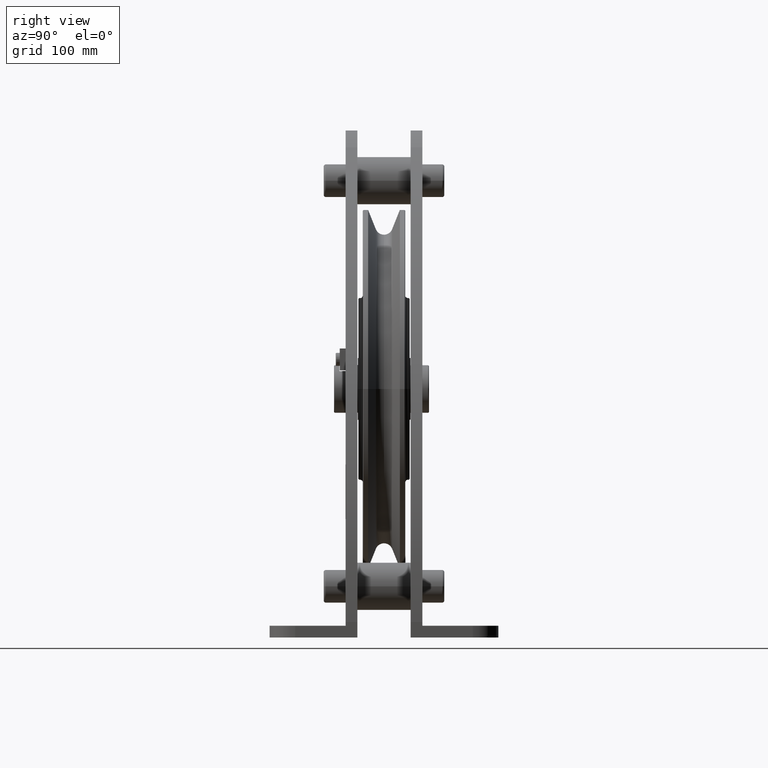
[diagram: clean part render]
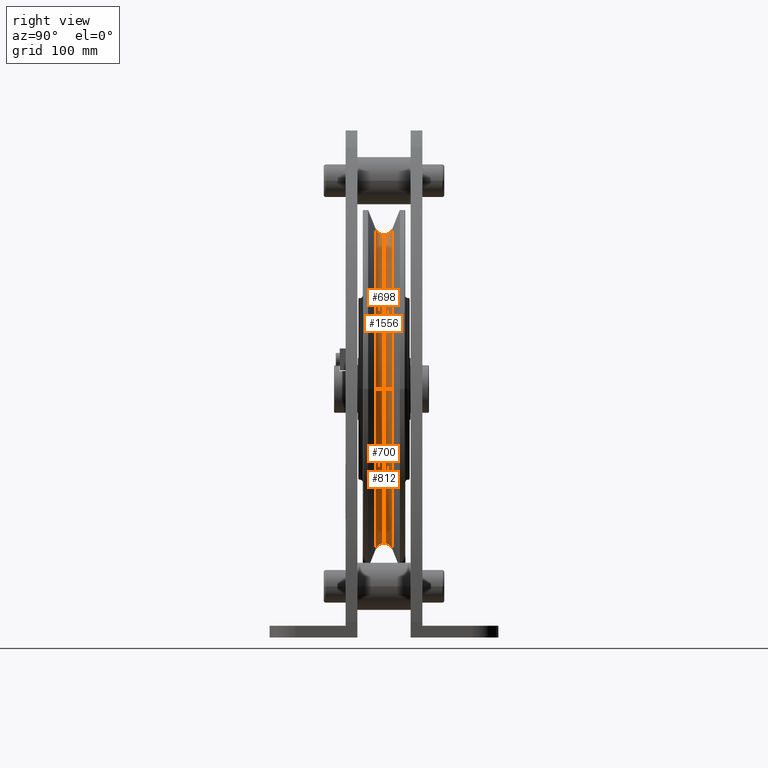
[diagram: same view with one multi-face feature highlighted, each face labeled with its STEP entity id]
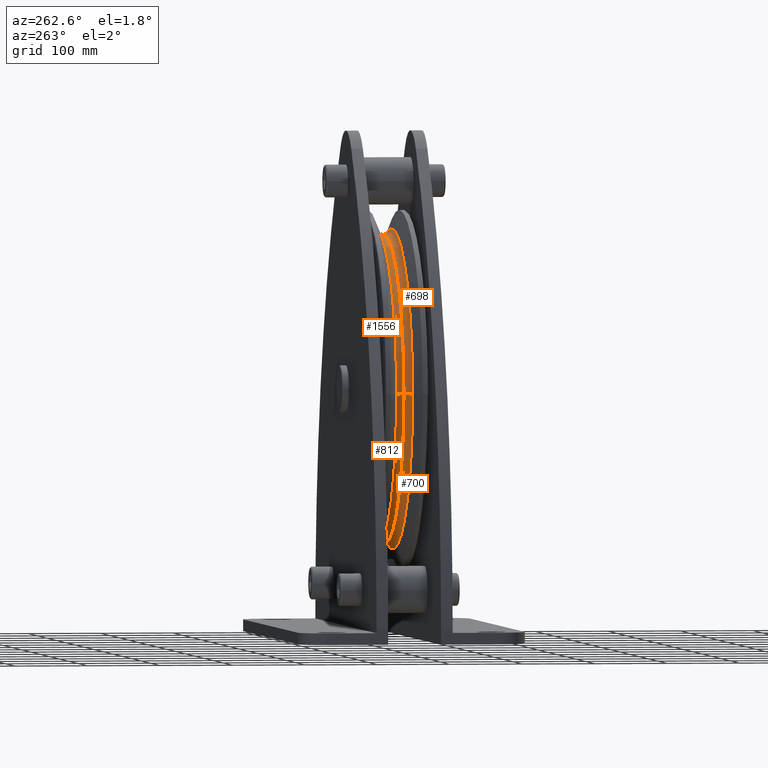
[diagram: same view with one multi-face feature highlighted, each face labeled with its STEP entity id]
A machine part, right view. The highlighted faces form ONE feature: a constant-radius fillet chain: 4 tangent blend faces with common blend radius 12 mm. The faces share edges in the B-rep.
A second angle (auxiliary view) of the same feature is appended — it is thin or edge-on in the first view.
Their STEP definitions:
[1] entity #700 (Torus):
#700=ADVANCED_FACE('',(#2017),#2018,.F.);
#2017=FACE_OUTER_BOUND('',#4049,.T.);
#2018=TOROIDAL_SURFACE('',#4050,223.9999992993,11.9999992993);
#4049=EDGE_LOOP('',(#6160,#6161,#6162,#6163));
#4050=AXIS2_PLACEMENT_3D('',#6164,#6165,#6166);
#6160=ORIENTED_EDGE('',*,*,#12158,.F.);
#6161=ORIENTED_EDGE('',*,*,#12156,.F.);
#6162=ORIENTED_EDGE('',*,*,#12159,.F.);
#6163=ORIENTED_EDGE('',*,*,#12154,.F.);
#6164=CARTESIAN_POINT('',(0.0,0.0,0.0));
#6165=DIRECTION('',(0.0,-1.0,0.0));
#6166=DIRECTION('',(1.0,0.0,0.0));
#12154=EDGE_CURVE('',#14601,#14604,#14605,.T.);
#12156=EDGE_CURVE('',#14606,#14602,#14608,.T.);
#12158=EDGE_CURVE('',#14602,#14601,#14610,.T.);
#12159=EDGE_CURVE('',#14604,#14606,#14611,.T.);
#14601=VERTEX_POINT('',#19358);
#14602=VERTEX_POINT('',#19359);
#14604=VERTEX_POINT('',#19361);
#14605=CIRCLE('',#19362,11.9999992993);
#14606=VERTEX_POINT('',#19363);
#14608=CIRCLE('',#19365,11.9999992993);
#14610=CIRCLE('',#19367,212.0);
#14611=CIRCLE('',#19368,219.407799);
#19358=CARTESIAN_POINT('',(-212.0,-1.46957607316582E-015,2.6457322749581E-014));
#19359=CARTESIAN_POINT('',(212.0,-1.46957607316582E-015,-2.6457322749581E-014));
#19361=CARTESIAN_POINT('',(-219.407799,-11.086554,2.68697058753316E-014));
#19362=AXIS2_PLACEMENT_3D('',#26918,#26919,#26920);
#19363=CARTESIAN_POINT('',(219.407799,-11.086554,0.0));
#19365=AXIS2_PLACEMENT_3D('',#26924,#26925,#26926);
#19367=AXIS2_PLACEMENT_3D('',#26927,#26928,#26929);
#19368=AXIS2_PLACEMENT_3D('',#26930,#26931,#26932);
#26918=CARTESIAN_POINT('',(-223.9999992993,0.0,2.74320882150897E-014));
#26919=DIRECTION('',(-1.22464679914735E-016,0.0,-1.0));
#26920=DIRECTION('',(-1.0,0.0,1.22464679914735E-016));
#26924=CARTESIAN_POINT('',(223.9999992993,0.0,-2.74320882150897E-014));
#26925=DIRECTION('',(-1.22464679914735E-016,-0.0,-1.0));
#26926=DIRECTION('',(1.0,0.0,-1.22464679914735E-016));
#26927=CARTESIAN_POINT('',(0.0,-1.46957607316582E-015,0.0));
#26928=DIRECTION('',(-0.0,1.0,0.0));
#26929=DIRECTION('',(0.0,0.0,1.0));
#26930=CARTESIAN_POINT('',(0.0,-11.086554,0.0));
#26931=DIRECTION('',(0.0,-1.0,0.0));
#26932=DIRECTION('',(1.0,0.0,0.0));
[2] entity #812 (Torus):
#812=ADVANCED_FACE('',(#2191),#2192,.F.);
#2191=FACE_OUTER_BOUND('',#4223,.T.);
#2192=TOROIDAL_SURFACE('',#4224,223.9999992993,11.9999992993);
#4223=EDGE_LOOP('',(#6764,#6765,#6766,#6767));
#4224=AXIS2_PLACEMENT_3D('',#6768,#6769,#6770);
#6764=ORIENTED_EDGE('',*,*,#12158,.T.);
#6765=ORIENTED_EDGE('',*,*,#12531,.F.);
#6766=ORIENTED_EDGE('',*,*,#12532,.T.);
#6767=ORIENTED_EDGE('',*,*,#12533,.F.);
#6768=CARTESIAN_POINT('',(0.0,0.0,0.0));
#6769=DIRECTION('',(0.0,-1.0,0.0));
#6770=DIRECTION('',(1.0,0.0,0.0));
#12158=EDGE_CURVE('',#14602,#14601,#14610,.T.);
#12531=EDGE_CURVE('',#15229,#14601,#15233,.T.);
#12532=EDGE_CURVE('',#15229,#15227,#15234,.T.);
#12533=EDGE_CURVE('',#14602,#15227,#15235,.T.);
#14601=VERTEX_POINT('',#19358);
#14602=VERTEX_POINT('',#19359);
#14610=CIRCLE('',#19367,212.0);
#15227=VERTEX_POINT('',#22081);
#15229=VERTEX_POINT('',#22084);
#15233=CIRCLE('',#22089,11.9999992993);
#15234=CIRCLE('',#22090,219.407799);
#15235=CIRCLE('',#22091,11.9999992993);
#19358=CARTESIAN_POINT('',(-212.0,-1.46957607316582E-015,2.6457322749581E-014));
#19359=CARTESIAN_POINT('',(212.0,-1.46957607316582E-015,-2.6457322749581E-014));
#19367=AXIS2_PLACEMENT_3D('',#26927,#26928,#26929);
#22081=CARTESIAN_POINT('',(219.407799,11.086554,0.0));
#22084=CARTESIAN_POINT('',(-219.407799,11.086554,2.68697058753316E-014));
#22089=AXIS2_PLACEMENT_3D('',#27456,#27457,#27458);
#22090=AXIS2_PLACEMENT_3D('',#27459,#27460,#27461);
#22091=AXIS2_PLACEMENT_3D('',#27462,#27463,#27464);
#26927=CARTESIAN_POINT('',(0.0,-1.46957607316582E-015,0.0));
#26928=DIRECTION('',(-0.0,1.0,0.0));
#26929=DIRECTION('',(0.0,0.0,1.0));
#27456=CARTESIAN_POINT('',(-223.9999992993,0.0,2.74320882150897E-014));
#27457=DIRECTION('',(-1.22464679914735E-016,0.0,-1.0));
#27458=DIRECTION('',(-1.0,0.0,1.22464679914735E-016));
#27459=CARTESIAN_POINT('',(0.0,11.086554,0.0));
#27460=DIRECTION('',(0.0,-1.0,0.0));
#27461=DIRECTION('',(1.0,0.0,0.0));
#27462=CARTESIAN_POINT('',(223.9999992993,0.0,-2.74320882150897E-014));
#27463=DIRECTION('',(-1.22464679914735E-016,-0.0,-1.0));
#27464=DIRECTION('',(1.0,0.0,-1.22464679914735E-016));
[3] entity #1556 (Torus):
#1556=ADVANCED_FACE('',(#3359),#3360,.F.);
#3359=FACE_OUTER_BOUND('',#5391,.T.);
#3360=TOROIDAL_SURFACE('',#5392,223.9999992993,11.9999992993);
#5391=EDGE_LOOP('',(#10297,#10298,#10299,#10300));
#5392=AXIS2_PLACEMENT_3D('',#10301,#10302,#10303);
#10297=ORIENTED_EDGE('',*,*,#12153,.T.);
#10298=ORIENTED_EDGE('',*,*,#12533,.T.);
#10299=ORIENTED_EDGE('',*,*,#12529,.T.);
#10300=ORIENTED_EDGE('',*,*,#12531,.T.);
#10301=CARTESIAN_POINT('',(0.0,0.0,0.0));
#10302=DIRECTION('',(0.0,-1.0,0.0));
#10303=DIRECTION('',(1.0,0.0,0.0));
#12153=EDGE_CURVE('',#14601,#14602,#14603,.T.);
#12529=EDGE_CURVE('',#15227,#15229,#15231,.T.);
#12531=EDGE_CURVE('',#15229,#14601,#15233,.T.);
#12533=EDGE_CURVE('',#14602,#15227,#15235,.T.);
#14601=VERTEX_POINT('',#19358);
#14602=VERTEX_POINT('',#19359);
#14603=CIRCLE('',#19360,212.0);
#15227=VERTEX_POINT('',#22081);
#15229=VERTEX_POINT('',#22084);
#15231=CIRCLE('',#22087,219.407799);
#15233=CIRCLE('',#22089,11.9999992993);
#15235=CIRCLE('',#22091,11.9999992993);
#19358=CARTESIAN_POINT('',(-212.0,-1.46957607316582E-015,2.6457322749581E-014));
#19359=CARTESIAN_POINT('',(212.0,-1.46957607316582E-015,-2.6457322749581E-014));
#19360=AXIS2_PLACEMENT_3D('',#26915,#26916,#26917);
#22081=CARTESIAN_POINT('',(219.407799,11.086554,0.0));
#22084=CARTESIAN_POINT('',(-219.407799,11.086554,2.68697058753316E-014));
#22087=AXIS2_PLACEMENT_3D('',#27453,#27454,#27455);
#22089=AXIS2_PLACEMENT_3D('',#27456,#27457,#27458);
#22091=AXIS2_PLACEMENT_3D('',#27462,#27463,#27464);
#26915=CARTESIAN_POINT('',(0.0,-1.46957607316582E-015,0.0));
#26916=DIRECTION('',(-0.0,1.0,0.0));
#26917=DIRECTION('',(0.0,0.0,1.0));
#27453=CARTESIAN_POINT('',(0.0,11.086554,0.0));
#27454=DIRECTION('',(0.0,-1.0,0.0));
#27455=DIRECTION('',(1.0,0.0,0.0));
#27456=CARTESIAN_POINT('',(-223.9999992993,0.0,2.74320882150897E-014));
#27457=DIRECTION('',(-1.22464679914735E-016,0.0,-1.0));
#27458=DIRECTION('',(-1.0,0.0,1.22464679914735E-016));
#27462=CARTESIAN_POINT('',(223.9999992993,0.0,-2.74320882150897E-014));
#27463=DIRECTION('',(-1.22464679914735E-016,-0.0,-1.0));
#27464=DIRECTION('',(1.0,0.0,-1.22464679914735E-016));
[4] entity #698 (Torus):
#698=ADVANCED_FACE('',(#2014),#2015,.F.);
#2014=FACE_OUTER_BOUND('',#4046,.T.);
#2015=TOROIDAL_SURFACE('',#4047,223.9999992993,11.9999992993);
#4046=EDGE_LOOP('',(#6152,#6153,#6154,#6155));
#4047=AXIS2_PLACEMENT_3D('',#6156,#6157,#6158);
#6152=ORIENTED_EDGE('',*,*,#12153,.F.);
#6153=ORIENTED_EDGE('',*,*,#12154,.T.);
#6154=ORIENTED_EDGE('',*,*,#12155,.F.);
#6155=ORIENTED_EDGE('',*,*,#12156,.T.);
#6156=CARTESIAN_POINT('',(0.0,0.0,0.0));
#6157=DIRECTION('',(0.0,-1.0,0.0));
#6158=DIRECTION('',(1.0,0.0,0.0));
#12153=EDGE_CURVE('',#14601,#14602,#14603,.T.);
#12154=EDGE_CURVE('',#14601,#14604,#14605,.T.);
#12155=EDGE_CURVE('',#14606,#14604,#14607,.T.);
#12156=EDGE_CURVE('',#14606,#14602,#14608,.T.);
#14601=VERTEX_POINT('',#19358);
#14602=VERTEX_POINT('',#19359);
#14603=CIRCLE('',#19360,212.0);
#14604=VERTEX_POINT('',#19361);
#14605=CIRCLE('',#19362,11.9999992993);
#14606=VERTEX_POINT('',#19363);
#14607=CIRCLE('',#19364,219.407799);
#14608=CIRCLE('',#19365,11.9999992993);
#19358=CARTESIAN_POINT('',(-212.0,-1.46957607316582E-015,2.6457322749581E-014));
#19359=CARTESIAN_POINT('',(212.0,-1.46957607316582E-015,-2.6457322749581E-014));
#19360=AXIS2_PLACEMENT_3D('',#26915,#26916,#26917);
#19361=CARTESIAN_POINT('',(-219.407799,-11.086554,2.68697058753316E-014));
#19362=AXIS2_PLACEMENT_3D('',#26918,#26919,#26920);
#19363=CARTESIAN_POINT('',(219.407799,-11.086554,0.0));
#19364=AXIS2_PLACEMENT_3D('',#26921,#26922,#26923);
#19365=AXIS2_PLACEMENT_3D('',#26924,#26925,#26926);
#26915=CARTESIAN_POINT('',(0.0,-1.46957607316582E-015,0.0));
#26916=DIRECTION('',(-0.0,1.0,0.0));
#26917=DIRECTION('',(0.0,0.0,1.0));
#26918=CARTESIAN_POINT('',(-223.9999992993,0.0,2.74320882150897E-014));
#26919=DIRECTION('',(-1.22464679914735E-016,0.0,-1.0));
#26920=DIRECTION('',(-1.0,0.0,1.22464679914735E-016));
#26921=CARTESIAN_POINT('',(0.0,-11.086554,0.0));
#26922=DIRECTION('',(0.0,-1.0,0.0));
#26923=DIRECTION('',(1.0,0.0,0.0));
#26924=CARTESIAN_POINT('',(223.9999992993,0.0,-2.74320882150897E-014));
#26925=DIRECTION('',(-1.22464679914735E-016,-0.0,-1.0));
#26926=DIRECTION('',(1.0,0.0,-1.22464679914735E-016));